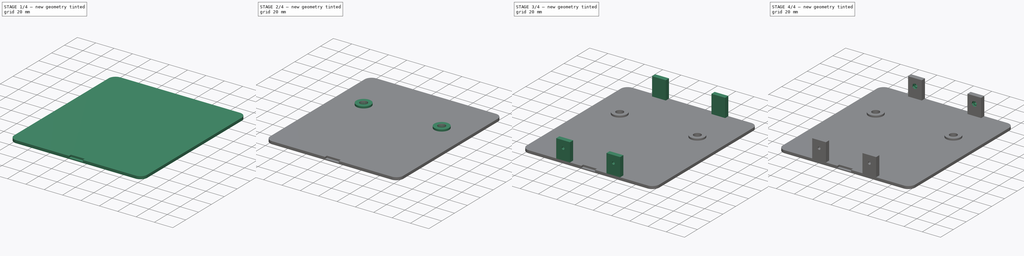
[diagram: build sequence overview — one tinted view per stage of 4, left to right]
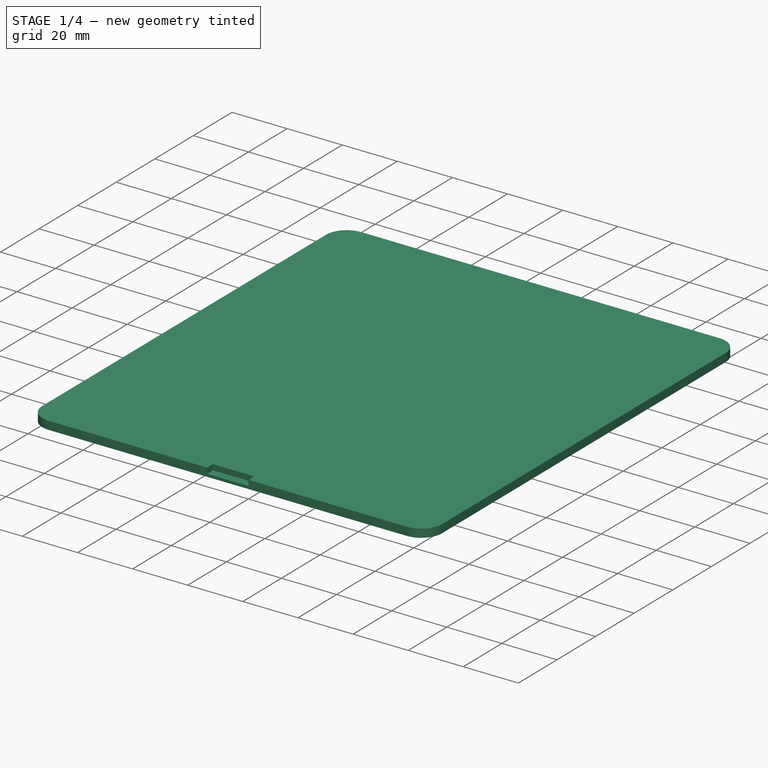
[diagram: stage 1 of 4 — iso view after this stage's code; geometry added in this stage tinted green]
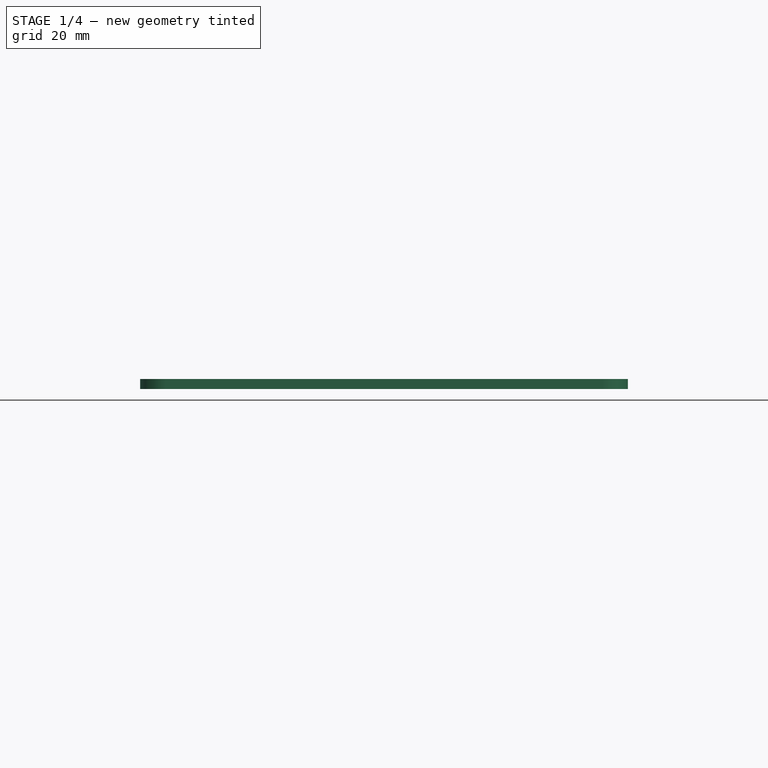
[diagram: stage 1 of 4 — front view after this stage's code; geometry added in this stage tinted green]
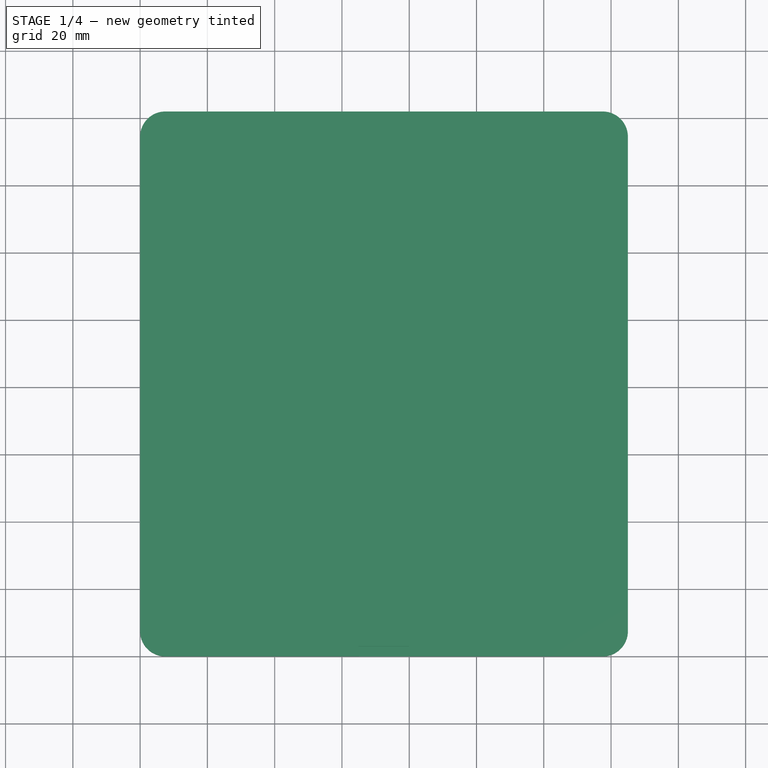
[diagram: stage 1 of 4 — top view after this stage's code; geometry added in this stage tinted green]
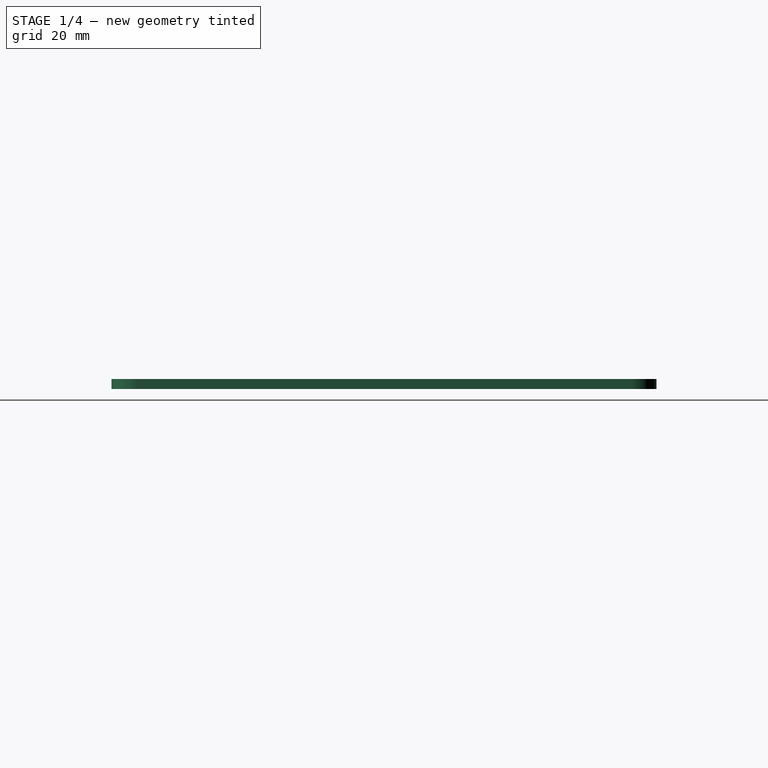
[diagram: stage 1 of 4 — right view after this stage's code; geometry added in this stage tinted green]
FCSTD DOCUMENT  (FreeCAD 0.18R)
Label: back
License: All rights reserved
LicenseURL: http://en.wikipedia.org/wiki/All_rights_reserved
objects: Sketcher::SketchObject×9, PartDesign::Pocket×6, PartDesign::Pad×3, PartDesign::Body×1
note: 28 computed .brp shape members not serialized (recipe doc carries the construction recipe); baked Part::Feature solids carry a one-line shape summary decoded from their .brp

FEATURE [Sketcher::SketchObject] Sketch
  MapMode = 5
  Support = -> [XY_Plane]
  sketch-geometry (8):
    g0: LineSegment StartX=7.5 StartY=162 StartZ=0 EndX=137.5 EndY=162 EndZ=0
    g1: LineSegment StartX=145 StartY=154.5 StartZ=0 EndX=145 EndY=7.5 EndZ=0
    g2: LineSegment StartX=137.5 StartY=6.2e-15 StartZ=0 EndX=7.5 EndY=6.2e-15 EndZ=0
    g3: LineSegment StartX=-9e-16 StartY=7.5 StartZ=0 EndX=-9e-16 EndY=154.5 EndZ=0
    g4: ArcOfCircle CenterX=7.5 CenterY=7.5 CenterZ=0 NormalX=0 NormalY=0 NormalZ=1 AngleXU=0 Radius=7.5 StartAngle=3.14159 EndAngle=4.71239
    g5: ArcOfCircle CenterX=137.5 CenterY=7.5 CenterZ=0 NormalX=0 NormalY=0 NormalZ=1 AngleXU=0 Radius=7.5 StartAngle=4.71239 EndAngle=6.28319
    g6: ArcOfCircle CenterX=137.5 CenterY=154.5 CenterZ=0 NormalX=0 NormalY=0 NormalZ=1 AngleXU=0 Radius=7.5 StartAngle=-9e-16 EndAngle=1.5708
    g7: ArcOfCircle CenterX=7.5 CenterY=154.5 CenterZ=0 NormalX=0 NormalY=0 NormalZ=1 AngleXU=0 Radius=7.5 StartAngle=1.5708 EndAngle=3.14159
  constraints (20):
    c: Horizontal(g0)
    c: Horizontal(g2)
    c: Vertical(g1)
    c: Vertical(g3)
    c: Tangent(g3,g4) = 1.5708
    c: Tangent(g2,g4) = 1.5708
    c: Radius(g4) = 7.5
    c: Tangent(g2,g5) = 1.5708
    c: Tangent(g1,g5) = 1.5708
    c: Radius(g5) = 7.5
    c: Tangent(g0,g6) = 1.5708
    c: Tangent(g1,g6) = 1.5708
    c: Radius(g6) = 7.5
    c: Tangent(g3,g7) = 1.5708
    c: Tangent(g0,g7) = 1.5708
    c: Radius(g7) = 7.5
    c: Distance(g3,g1) = 145
    c: Distance(g2,g0) = 162
    c: Distance(g-1,g1) = 145
    c: Distance(g-1,g0) = 162
FEATURE [PartDesign::Pad] Pad
  Length = 3
  Length2 = 100
  Profile = -> Sketch
  Type = 0
FEATURE [Sketcher::SketchObject] Sketch001
  MapMode = 5
  Placement = pos=(0,0,3) rot=(0,0,1;0rad)
  Support = -> [Pad]
  sketch-geometry (4):
    g0: LineSegment StartX=65 StartY=3 StartZ=0 EndX=80 EndY=3 EndZ=0
    g1: LineSegment StartX=80 StartY=3 StartZ=0 EndX=80 EndY=-4e-16 EndZ=0
    g2: LineSegment StartX=80 StartY=-4e-16 StartZ=0 EndX=65 EndY=-4e-16 EndZ=0
    g3: LineSegment StartX=65 StartY=-4e-16 StartZ=0 EndX=65 EndY=3 EndZ=0
  constraints (12):
    c: Coincident(g0,g1)
    c: Coincident(g1,g2)
    c: Coincident(g2,g3)
    c: Coincident(g3,g0)
    c: Horizontal(g0)
    c: Horizontal(g2)
    c: Vertical(g1)
    c: Vertical(g3)
    c: Distance(g0) = 15
    c: Distance(g1) = 3
    c: Distance(g2,g-2) = 65
    c: Distance(g-1,g0) = 3
FEATURE [PartDesign::Pocket] Pocket
  BaseFeature = -> Pad
  Length = 2
  Length2 = 100
  Profile = -> Sketch001
  Type = 0
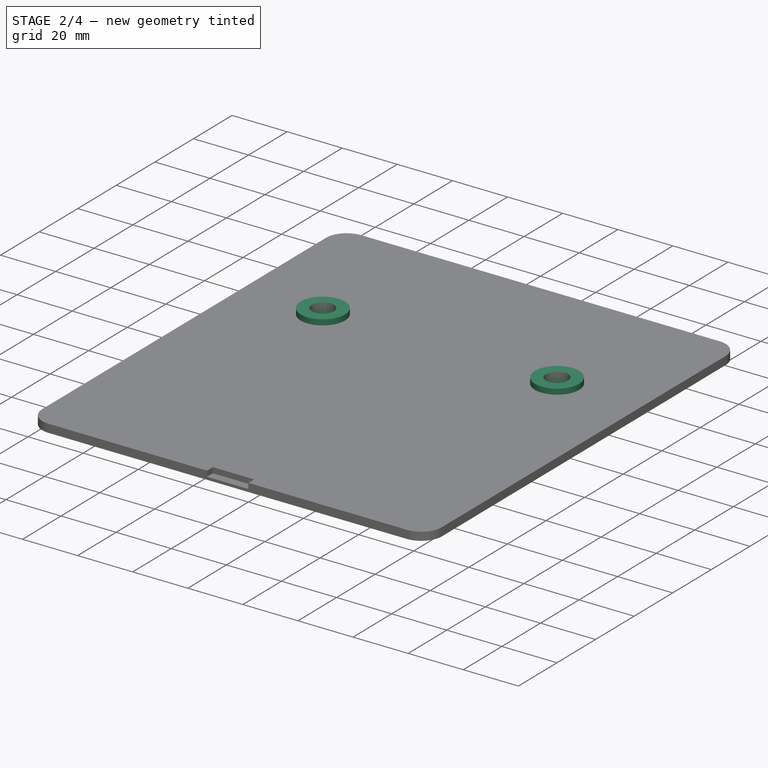
[diagram: stage 2 of 4 — iso view after this stage's code; geometry added in this stage tinted green]
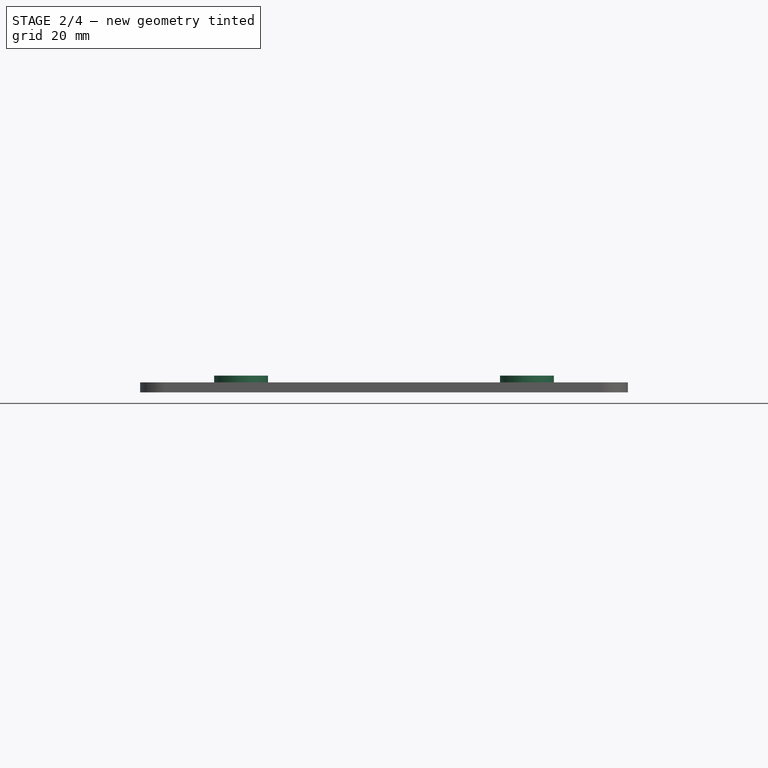
[diagram: stage 2 of 4 — front view after this stage's code; geometry added in this stage tinted green]
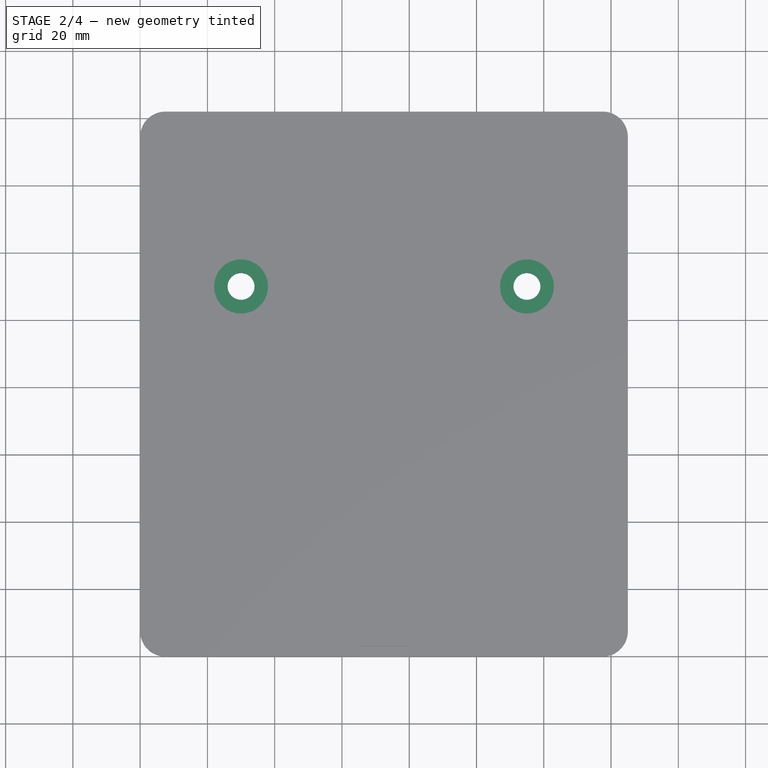
[diagram: stage 2 of 4 — top view after this stage's code; geometry added in this stage tinted green]
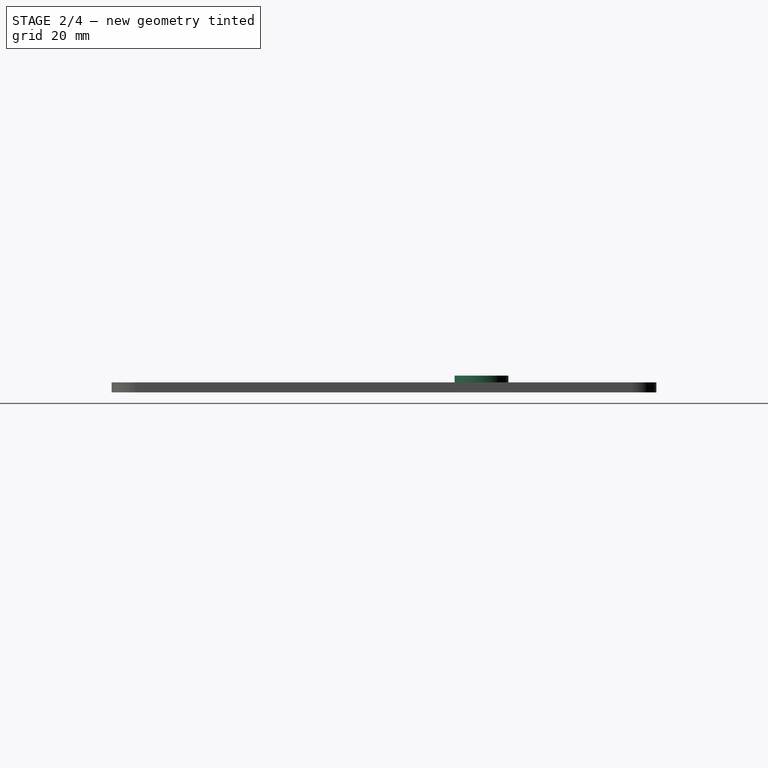
[diagram: stage 2 of 4 — right view after this stage's code; geometry added in this stage tinted green]
FEATURE [Sketcher::SketchObject] Sketch002
  MapMode = 5
  Placement = pos=(0,0,3) rot=(0,0,1;0rad)
  Support = -> [Pocket]
  sketch-geometry (2):
    g0: Circle CenterX=30 CenterY=110 CenterZ=0 NormalX=0 NormalY=0 NormalZ=1 AngleXU=0 Radius=8
    g1: Circle CenterX=115 CenterY=110 CenterZ=0 NormalX=0 NormalY=0 NormalZ=1 AngleXU=0 Radius=8
  constraints (6):
    c: Distance(g0,g1) = 85
    c: Distance(g0,g-2) = 30
    c: Radius(g0) = 8
    c: Radius(g1) = 8
    c: Distance(g0,g-1) = 110
    c: Distance(g1,g-1) = 110
FEATURE [PartDesign::Pad] Pad001
  BaseFeature = -> Pocket
  Length = 2
  Length2 = 100
  Profile = -> Sketch002
  Type = 0
FEATURE [Sketcher::SketchObject] Sketch003
  ExternalGeometry = -> [Pad001]
  MapMode = 5
  Placement = pos=(0,0,5) rot=(0,0,1;0rad)
  Support = -> [Pad001]
  sketch-geometry (2):
    g0: Circle CenterX=30 CenterY=110 CenterZ=0 NormalX=0 NormalY=0 NormalZ=1 AngleXU=0 Radius=4
    g1: Circle CenterX=115 CenterY=110 CenterZ=0 NormalX=0 NormalY=0 NormalZ=1 AngleXU=0 Radius=4
  constraints (4):
    c: Radius(g1) = 4
    c: Radius(g0) = 4
    c: Coincident(g0,g-3)
    c: Coincident(g1,g-4)
FEATURE [PartDesign::Pocket] Pocket001
  BaseFeature = -> Pad001
  Length = 5
  Length2 = 100
  Profile = -> Sketch003
  Type = 0
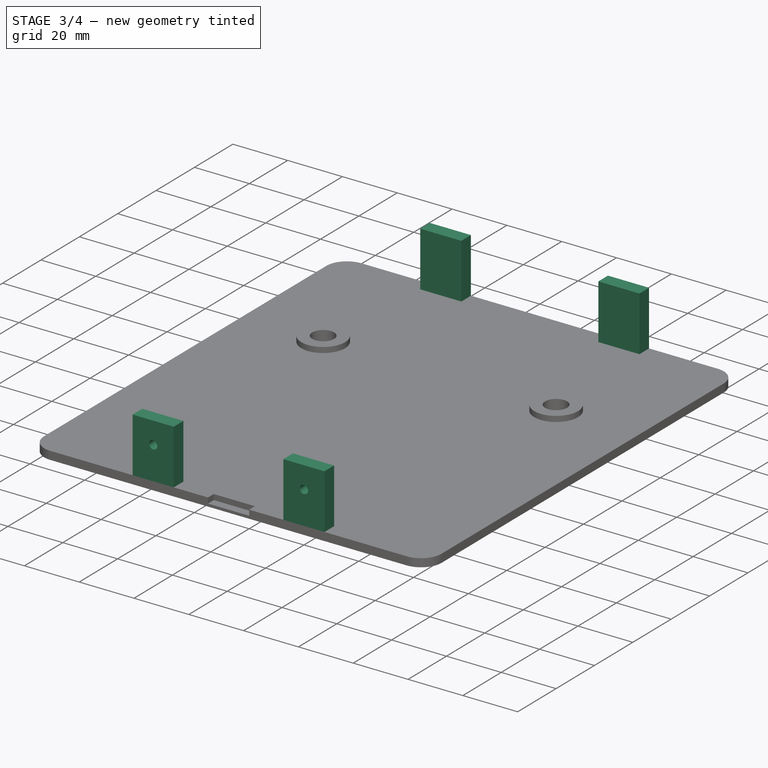
[diagram: stage 3 of 4 — iso view after this stage's code; geometry added in this stage tinted green]
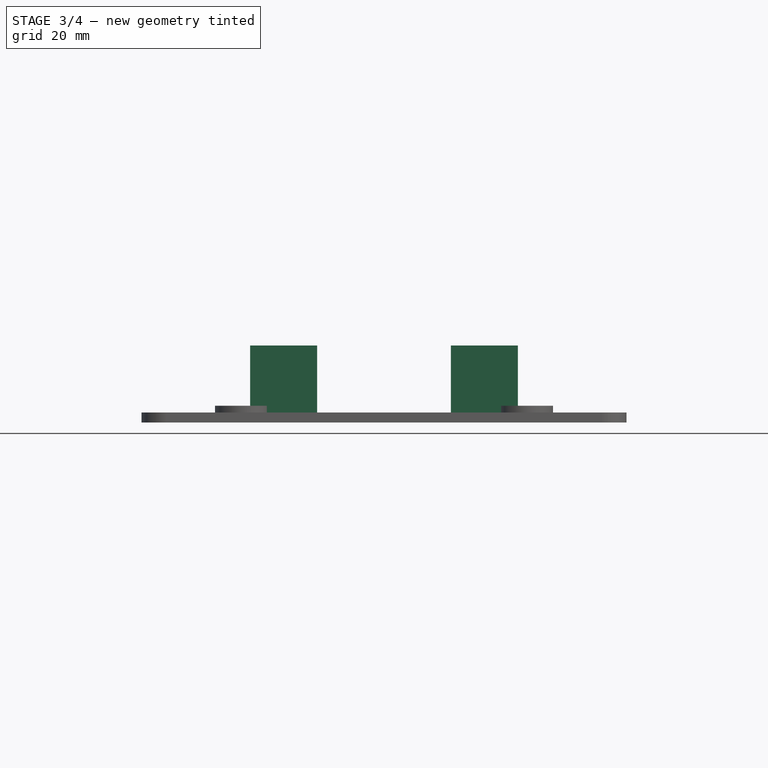
[diagram: stage 3 of 4 — front view after this stage's code; geometry added in this stage tinted green]
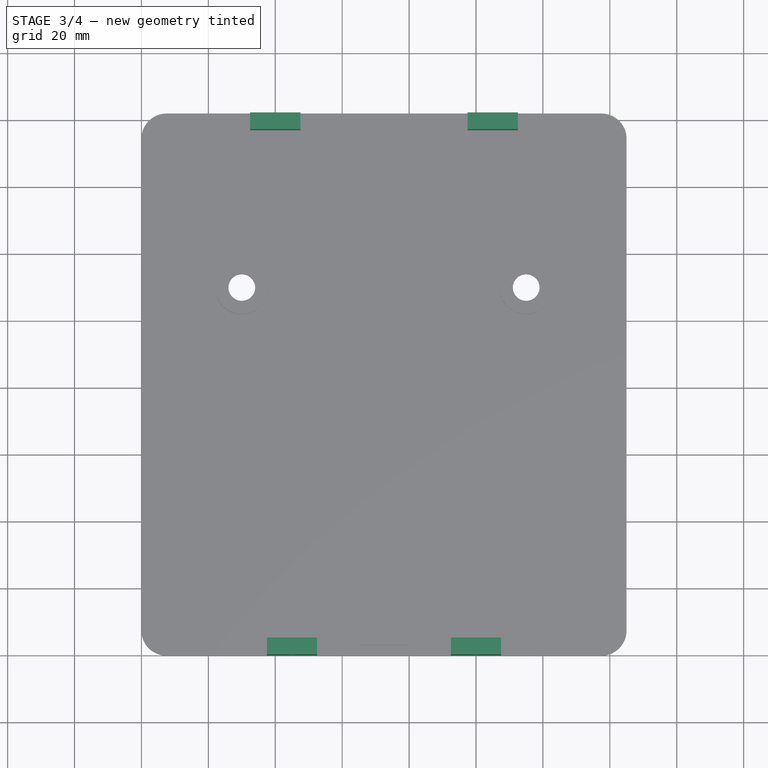
[diagram: stage 3 of 4 — top view after this stage's code; geometry added in this stage tinted green]
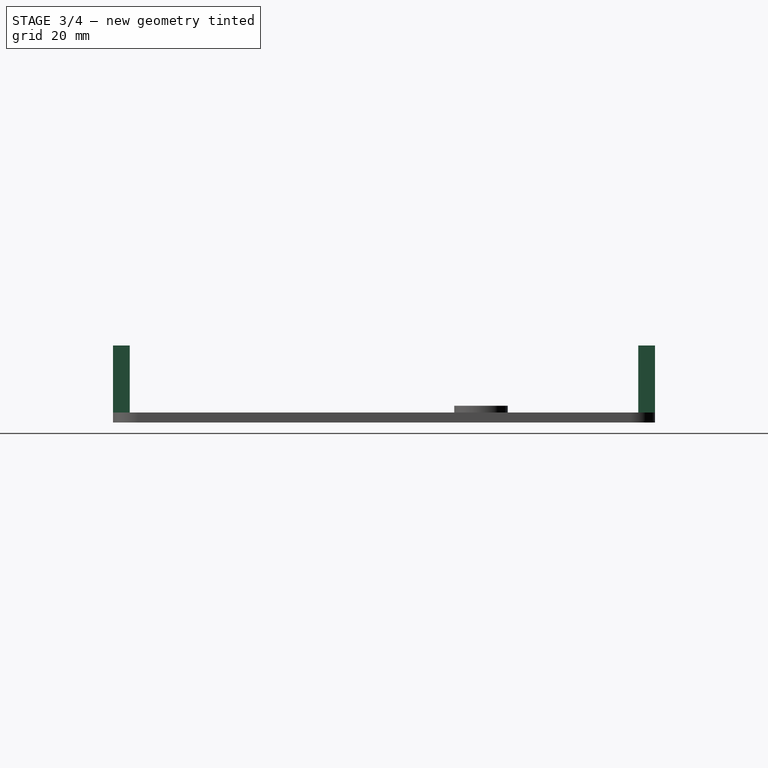
[diagram: stage 3 of 4 — right view after this stage's code; geometry added in this stage tinted green]
FEATURE [Sketcher::SketchObject] Sketch004
  MapMode = 5
  Placement = pos=(0,0,3) rot=(0,0,1;0rad)
  Support = -> [Pocket001]
  sketch-geometry (16):
    g0: LineSegment StartX=37.5 StartY=5 StartZ=0 EndX=52.5 EndY=5 EndZ=0
    g1: LineSegment StartX=52.5 StartY=5 StartZ=0 EndX=52.5 EndY=0 EndZ=0
    g2: LineSegment StartX=52.5 StartY=0 StartZ=0 EndX=37.5 EndY=0 EndZ=0
    g3: LineSegment StartX=37.5 StartY=0 StartZ=0 EndX=37.5 EndY=5 EndZ=0
    g4: LineSegment StartX=92.5 StartY=5 StartZ=0 EndX=107.5 EndY=5 EndZ=0
    g5: LineSegment StartX=107.5 StartY=5 StartZ=0 EndX=107.5 EndY=0 EndZ=0
    g6: LineSegment StartX=107.5 StartY=0 StartZ=0 EndX=92.5 EndY=0 EndZ=0
    g7: LineSegment StartX=92.5 StartY=0 StartZ=0 EndX=92.5 EndY=5 EndZ=0
    g8: LineSegment StartX=32.5 StartY=162 StartZ=0 EndX=47.5 EndY=162 EndZ=0
    g9: LineSegment StartX=47.5 StartY=162 StartZ=0 EndX=47.5 EndY=157 EndZ=0
    g10: LineSegment StartX=47.5 StartY=157 StartZ=0 EndX=32.5 EndY=157 EndZ=0
    g11: LineSegment StartX=32.5 StartY=157 StartZ=0 EndX=32.5 EndY=162 EndZ=0
    g12: LineSegment StartX=97.5 StartY=162 StartZ=0 EndX=112.5 EndY=162 EndZ=0
    g13: LineSegment StartX=112.5 StartY=162 StartZ=0 EndX=112.5 EndY=157 EndZ=0
    g14: LineSegment StartX=112.5 StartY=157 StartZ=0 EndX=97.5 EndY=157 EndZ=0
    g15: LineSegment StartX=97.5 StartY=157 StartZ=0 EndX=97.5 EndY=162 EndZ=0
  constraints (48):
    c: Coincident(g0,g1)
    c: Coincident(g1,g2)
    c: Coincident(g2,g3)
    c: Coincident(g3,g0)
    c: Horizontal(g0)
    c: Horizontal(g2)
    c: Vertical(g1)
    c: Vertical(g3)
    c: Coincident(g4,g5)
    c: Coincident(g5,g6)
    c: Coincident(g6,g7)
    c: Coincident(g7,g4)
    c: Horizontal(g4)
    c: Horizontal(g6)
    c: Vertical(g5)
    c: Vertical(g7)
    c: Coincident(g8,g9)
    c: Coincident(g9,g10)
    c: Coincident(g10,g11)
    c: Coincident(g11,g8)
    c: Horizontal(g8)
    c: Horizontal(g10)
    c: Vertical(g9)
    c: Vertical(g11)
    c: Coincident(g12,g13)
    c: Coincident(g13,g14)
    c: Coincident(g14,g15)
    c: Coincident(g15,g12)
    c: Horizontal(g12)
    c: Horizontal(g14)
    c: Vertical(g13)
    c: Vertical(g15)
    c: Distance(g13) = 5
    c: Distance(g9) = 5
    c: Distance(g1) = 5
    c: Distance(g5) = 5
    c: Distance(g12) = 15
    c: Distance(g8) = 15
    c: Distance(g4) = 15
    c: Distance(g0) = 15
    c: Distance(g2,g-2) = 37.5
    c: Distance(g4,g3) = 55
    c: Distance(g4,g-1) = 5
    c: Distance(g0,g-1) = 5
    c: Distance(g8,g-2) = 32.5
    c: Distance(g10,g15) = 65
    c: Distance(g8,g-1) = 162
    c: Distance(g12,g-1) = 162
FEATURE [PartDesign::Pad] Pad002
  BaseFeature = -> Pocket001
  Length = 20
  Length2 = 100
  Profile = -> Sketch004
  Type = 0
FEATURE [Sketcher::SketchObject] Sketch005
  ExternalGeometry = -> [Pad002]
  MapMode = 5
  Placement = pos=(0,5,0) rot=(0,0.707107,0.707107;3.14159rad)
  Support = -> [Pad002]
  sketch-geometry (14):
    g0: LineSegment StartX=-98.7986 StartY=12.3751 StartZ=0 EndX=-97.1261 EndY=14.728 EndZ=0
    g1: LineSegment StartX=-97.1261 StartY=14.728 StartZ=0 EndX=-98.3275 EndY=17.3529 EndZ=0
    g2: LineSegment StartX=-98.3275 StartY=17.3529 StartZ=0 EndX=-101.201 EndY=17.6249 EndZ=0
    g3: LineSegment StartX=-101.201 StartY=17.6249 StartZ=0 EndX=-102.874 EndY=15.272 EndZ=0
    g4: LineSegment StartX=-102.874 StartY=15.272 StartZ=0 EndX=-101.673 EndY=12.6471 EndZ=0
    g5: LineSegment StartX=-101.673 StartY=12.6471 StartZ=0 EndX=-98.7986 EndY=12.3751 EndZ=0
    g6: Circle [constr] CenterX=-100 CenterY=15 CenterZ=0 NormalX=0 NormalY=0 NormalZ=1 AngleXU=0 Radius=2.88675
    g7: LineSegment StartX=-43.6424 StartY=12.4524 StartZ=0 EndX=-42.1149 EndY=14.9019 EndZ=0
    g8: LineSegment StartX=-42.1149 StartY=14.9019 StartZ=0 EndX=-43.4725 EndY=17.4495 EndZ=0
    g9: LineSegment StartX=-43.4725 StartY=17.4495 StartZ=0 EndX=-46.3576 EndY=17.5476 EndZ=0
    g10: LineSegment StartX=-46.3576 StartY=17.5476 StartZ=0 EndX=-47.8851 EndY=15.0981 EndZ=0
    g11: LineSegment StartX=-47.8851 StartY=15.0981 StartZ=0 EndX=-46.5275 EndY=12.5505 EndZ=0
    g12: LineSegment StartX=-46.5275 StartY=12.5505 StartZ=0 EndX=-43.6424 EndY=12.4524 EndZ=0
    g13: Circle [constr] CenterX=-45 CenterY=15 CenterZ=0 NormalX=0 NormalY=0 NormalZ=1 AngleXU=0 Radius=2.88675
  constraints (32):
    c: Coincident(g0,g1)
    c: Coincident(g1,g2)
    c: Coincident(g2,g3)
    c: Coincident(g3,g4)
    c: Coincident(g4,g5)
    c: Coincident(g5,g0)
    c: Equal(g0, g1-g5) x5
    c: PointOnObject(g0,g6)
    c: PointOnObject(g1,g6)
    c: PointOnObject(g2,g6)
    c: PointOnObject(g3,g6)
    c: PointOnObject(g4,g6)
    c: PointOnObject(g5,g6)
    c: Distance(g2,g0) = 5
    c: Distance(g6,g-3) = 7.5
    c: Coincident(g7,g8)
    c: Coincident(g8,g9)
    c: Coincident(g9,g10)
    c: Coincident(g10,g11)
    c: Coincident(g11,g12)
    c: Coincident(g12,g7)
    c: Equal(g7, g8-g12) x5
    c: PointOnObject(g7,g13)
    c: PointOnObject(g8,g13)
    c: PointOnObject(g9,g13)
    c: PointOnObject(g10,g13)
    c: PointOnObject(g11,g13)
    c: PointOnObject(g12,g13)
    c: Distance(g10,g7) = 5
    c: Distance(g13,g-5) = 7.5
    c: Distance(g6,g-1) = 15
    c: Distance(g13,g-1) = 15
FEATURE [PartDesign::Pocket] Pocket002
  BaseFeature = -> Pad002
  Length = 2
  Length2 = 100
  Profile = -> Sketch005
  Type = 0
FEATURE [Sketcher::SketchObject] Sketch006
  ExternalGeometry = -> [Pocket002]
  MapMode = 5
  Placement = pos=(0,5,0) rot=(0,0.707107,0.707107;3.14159rad)
  Support = -> [Pocket002]
  sketch-geometry (2):
    g0: Circle CenterX=-100 CenterY=15 CenterZ=0 NormalX=0 NormalY=0 NormalZ=1 AngleXU=0 Radius=1.5
    g1: Circle CenterX=-45 CenterY=15 CenterZ=0 NormalX=0 NormalY=0 NormalZ=1 AngleXU=0 Radius=1.5
  constraints (6):
    c: Radius(g0) = 1.5
    c: Distance(g0,g-3) = 7.5
    c: Radius(g1) = 1.5
    c: Distance(g1,g-4) = 7.5
    c: Distance(g0,g-1) = 15
    c: Distance(g1,g-1) = 15
FEATURE [PartDesign::Pocket] Pocket003
  BaseFeature = -> Pocket002
  Length = 5
  Length2 = 100
  Profile = -> Sketch006
  Type = 0
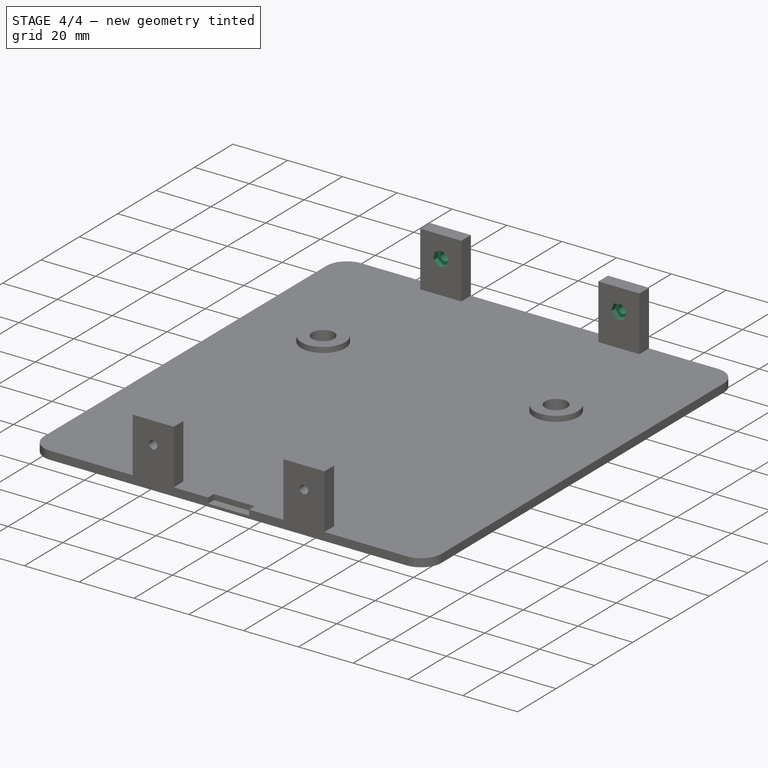
[diagram: stage 4 of 4 — iso view after this stage's code; geometry added in this stage tinted green]
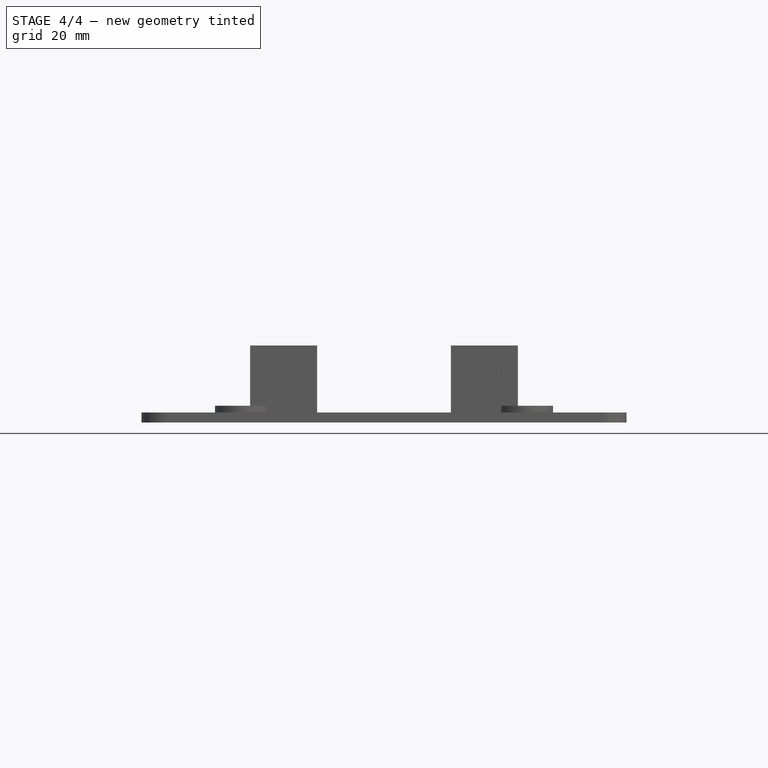
[diagram: stage 4 of 4 — front view after this stage's code; geometry added in this stage tinted green]
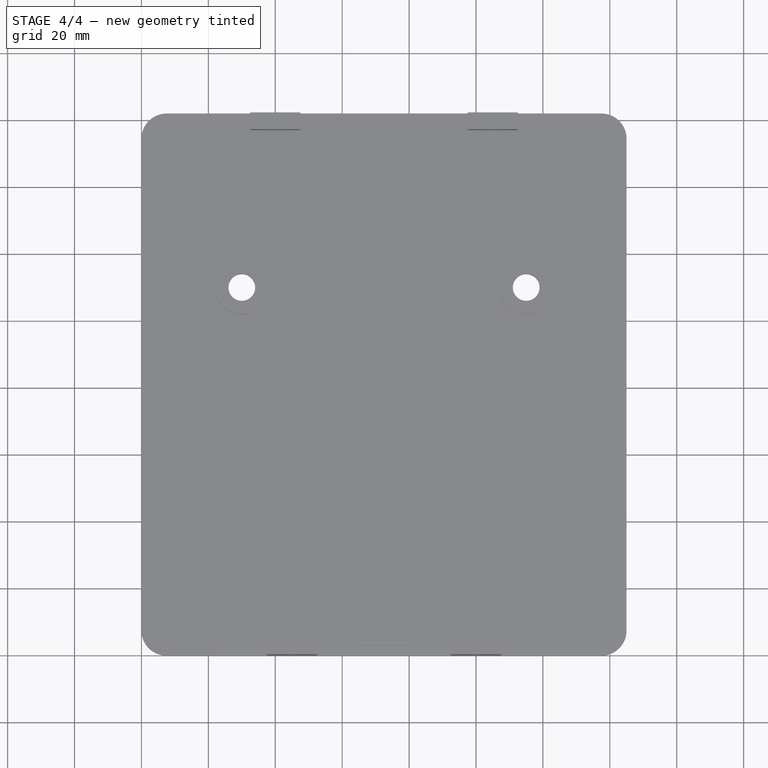
[diagram: stage 4 of 4 — top view after this stage's code; geometry added in this stage tinted green]
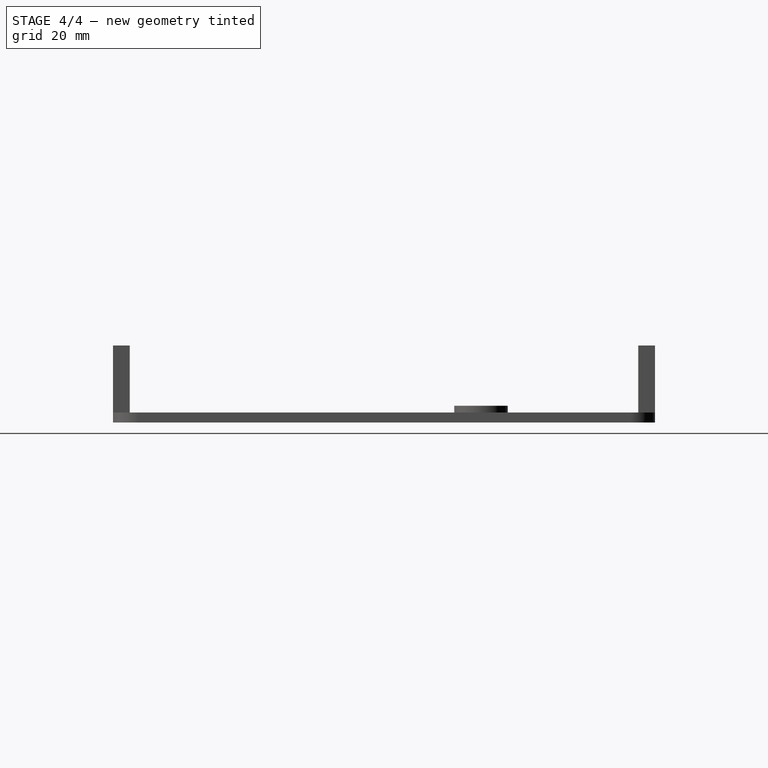
[diagram: stage 4 of 4 — right view after this stage's code; geometry added in this stage tinted green]
FEATURE [Sketcher::SketchObject] Sketch007
  ExternalGeometry = -> [Pocket003]
  MapMode = 5
  Placement = pos=(0,157,0) rot=(1,0,0;1.5708rad)
  Support = -> [Pocket003]
  sketch-geometry (14):
    g0: LineSegment StartX=42.3033 StartY=13.2598 StartZ=0 EndX=42.6587 EndY=16.1246 EndZ=0
    g1: LineSegment StartX=42.6587 StartY=16.1246 StartZ=0 EndX=40.3554 EndY=17.8648 EndZ=0
    g2: LineSegment StartX=40.3554 StartY=17.8648 StartZ=0 EndX=37.6967 EndY=16.7402 EndZ=0
    g3: LineSegment StartX=37.6967 StartY=16.7402 StartZ=0 EndX=37.3413 EndY=13.8754 EndZ=0
    g4: LineSegment StartX=37.3413 StartY=13.8754 StartZ=0 EndX=39.6446 EndY=12.1352 EndZ=0
    g5: LineSegment StartX=39.6446 StartY=12.1352 StartZ=0 EndX=42.3033 EndY=13.2598 EndZ=0
    g6: Circle [constr] CenterX=40 CenterY=15 CenterZ=0 NormalX=0 NormalY=0 NormalZ=1 AngleXU=0 Radius=2.88675
    g7: LineSegment StartX=106.849 StartY=12.7833 StartZ=0 EndX=107.844 EndY=15.4931 EndZ=0
    g8: LineSegment StartX=107.844 StartY=15.4931 StartZ=0 EndX=105.995 EndY=17.7098 EndZ=0
    g9: LineSegment StartX=105.995 StartY=17.7098 StartZ=0 EndX=103.151 EndY=17.2167 EndZ=0
    g10: LineSegment StartX=103.151 StartY=17.2167 StartZ=0 EndX=102.156 EndY=14.5069 EndZ=0
    g11: LineSegment StartX=102.156 StartY=14.5069 StartZ=0 EndX=104.005 EndY=12.2902 EndZ=0
    g12: LineSegment StartX=104.005 StartY=12.2902 StartZ=0 EndX=106.849 EndY=12.7833 EndZ=0
    g13: Circle [constr] CenterX=105 CenterY=15 CenterZ=0 NormalX=0 NormalY=0 NormalZ=1 AngleXU=0 Radius=2.88675
  constraints (32):
    c: Coincident(g0,g1)
    c: Coincident(g1,g2)
    c: Coincident(g2,g3)
    c: Coincident(g3,g4)
    c: Coincident(g4,g5)
    c: Coincident(g5,g0)
    c: Equal(g0, g1-g5) x5
    c: PointOnObject(g0,g6)
    c: PointOnObject(g1,g6)
    c: PointOnObject(g2,g6)
    c: PointOnObject(g3,g6)
    c: PointOnObject(g4,g6)
    c: PointOnObject(g5,g6)
    c: Distance(g3,g1) = 5
    c: Distance(g6,g-3) = 7.5
    c: Coincident(g7,g8)
    c: Coincident(g8,g9)
    c: Coincident(g9,g10)
    c: Coincident(g10,g11)
    c: Coincident(g11,g12)
    c: Coincident(g12,g7)
    c: Equal(g7, g8-g12) x5
    c: PointOnObject(g7,g13)
    c: PointOnObject(g8,g13)
    c: PointOnObject(g9,g13)
    c: PointOnObject(g10,g13)
    c: PointOnObject(g11,g13)
    c: PointOnObject(g12,g13)
    c: Distance(g10,g8) = 5
    c: Distance(g13,g-4) = 7.5
    c: Distance(g6,g-1) = 15
    c: Distance(g13,g-1) = 15
FEATURE [PartDesign::Pocket] Pocket004
  BaseFeature = -> Pocket003
  Length = 2
  Length2 = 100
  Profile = -> Sketch007
  Type = 0
FEATURE [Sketcher::SketchObject] Sketch008
  ExternalGeometry = -> [Pocket004]
  MapMode = 5
  Placement = pos=(0,157,0) rot=(1,0,0;1.5708rad)
  Support = -> [Pocket004]
  sketch-geometry (2):
    g0: Circle CenterX=40 CenterY=15 CenterZ=0 NormalX=0 NormalY=0 NormalZ=1 AngleXU=0 Radius=1.5
    g1: Circle CenterX=105 CenterY=15 CenterZ=0 NormalX=0 NormalY=0 NormalZ=1 AngleXU=0 Radius=1.5
  constraints (6):
    c: Radius(g0) = 1.5
    c: Distance(g0,g-3) = 7.5
    c: Distance(g1,g-4) = 7.5
    c: Radius(g1) = 1.5
    c: Distance(g0,g-1) = 15
    c: Distance(g1,g-1) = 15
FEATURE [PartDesign::Pocket] Pocket005
  BaseFeature = -> Pocket004
  Length = 5
  Length2 = 100
  Profile = -> Sketch008
  Type = 0
FEATURE [PartDesign::Body] Body
  Group = -> [Sketch,Pad,Sketch001,Pocket,Sketch002,Pad001,Sketch003,Pocket001,Sketch004,Pad002,Sketch005,Pocket002,Sketch006,Pocket003,Sketch007,Pocket004,Sketch008,Pocket005]
  Origin = -> Origin
  Tip = -> Pocket005
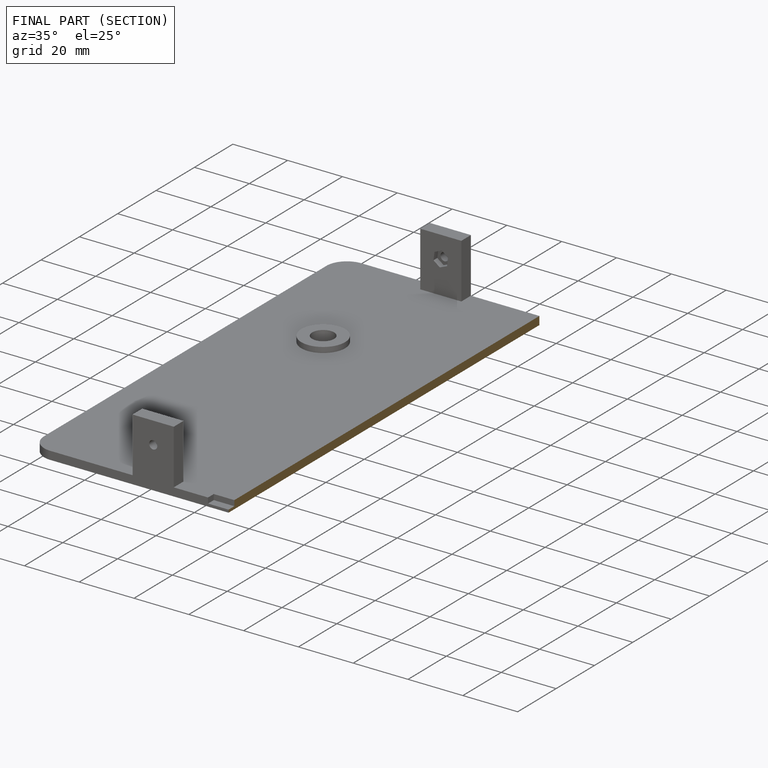
[diagram: finished part — half-section view (interior)]
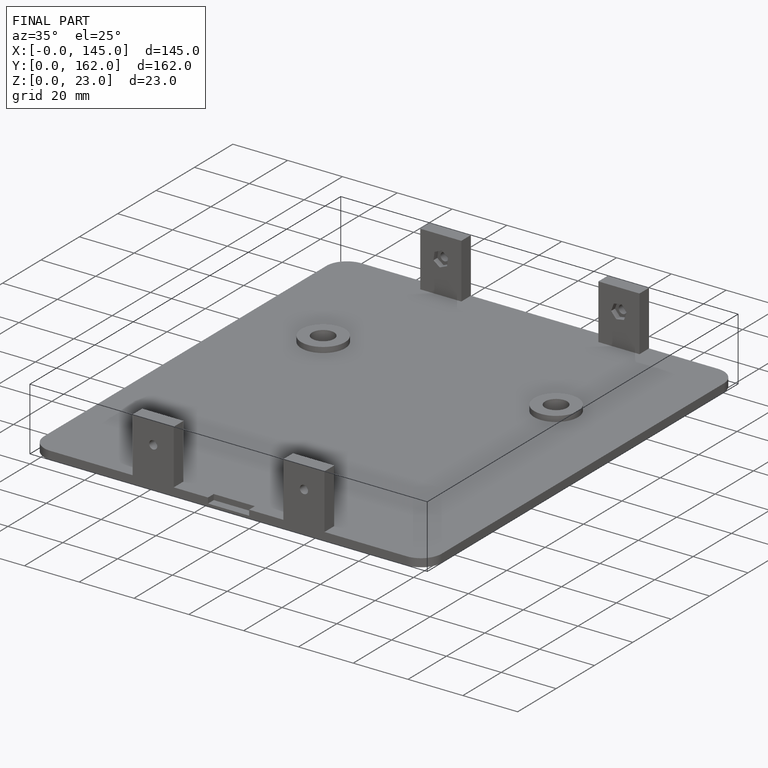
[diagram: finished part — iso view with bounding-box wireframe]
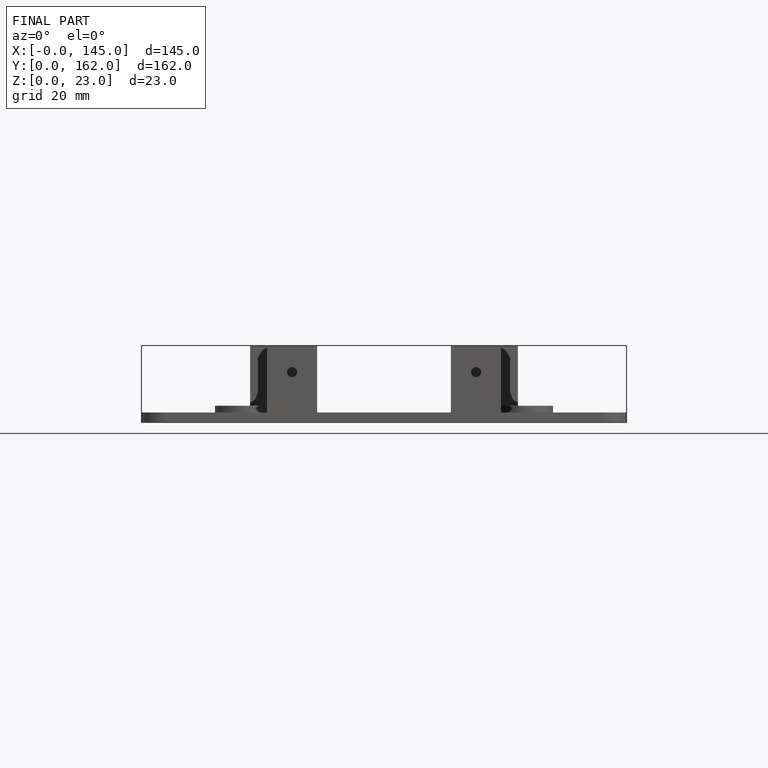
[diagram: finished part — front view with bounding-box wireframe]
